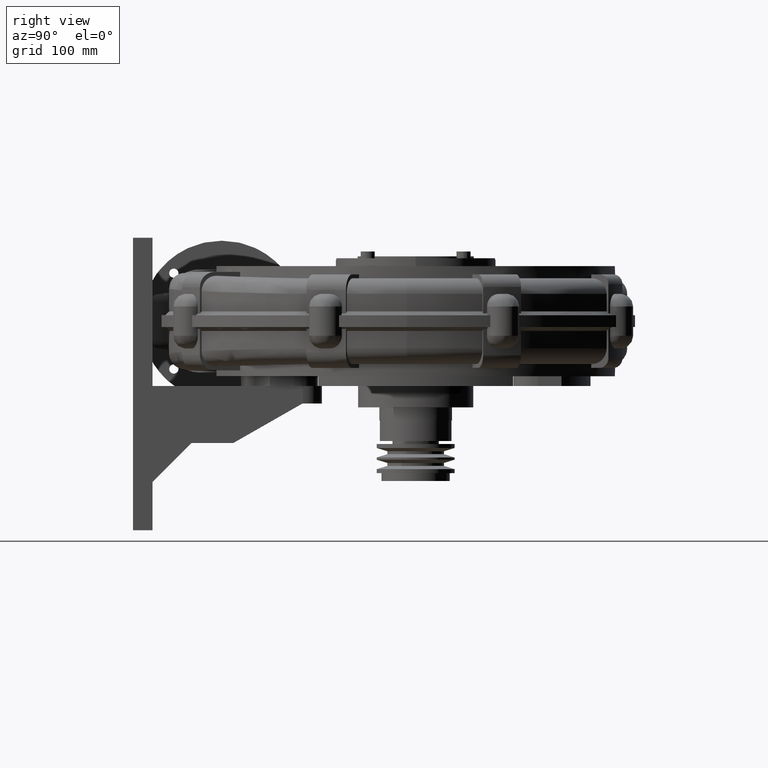
[diagram: clean part render]
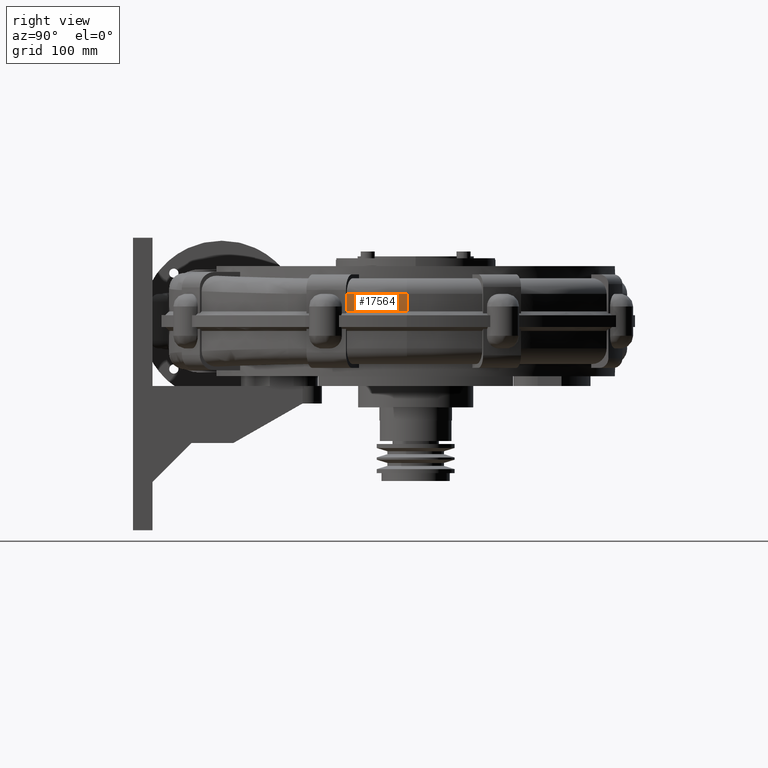
[diagram: same view with one face highlighted and labeled with its STEP entity id]
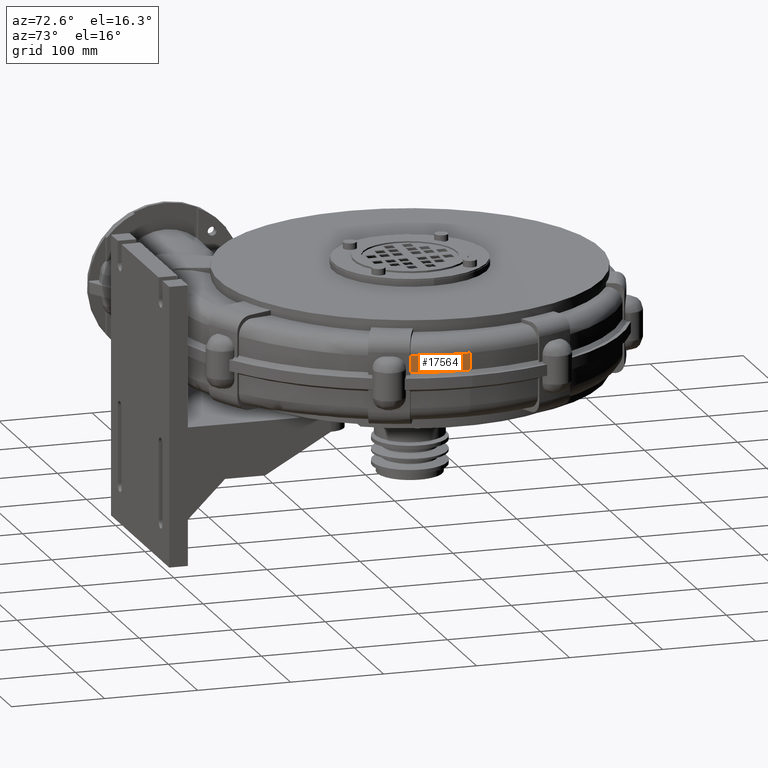
[diagram: same view with one face highlighted and labeled with its STEP entity id]
A machine part, right view. The second image highlights one B-rep face of the part: STEP entity #17564.
A second angle (auxiliary view) of the same face is appended — the face is thin or edge-on in the first view.
In plain terms, the highlighted cylindrical surface (partial cylindrical patch) has radius 244 mm, axis along (0, 0, 1).
Its self-contained STEP definition (entity closure, byte-faithful):
#8395=CARTESIAN_POINT('',(235.0,-23.999999999999947,94.499999999999375));
#8396=VERTEX_POINT('',#8395);
#8404=CARTESIAN_POINT('',(227.05029304419867,-85.775878413406076,94.499999999999432));
#8405=VERTEX_POINT('',#8404);
#8406=CARTESIAN_POINT('',(235.0,-24.00000013254942,94.499999999999375));
#8407=CARTESIAN_POINT('',(234.9999999886208,-44.820657930558802,94.499999999999389));
#8408=CARTESIAN_POINT('',(232.31886277508366,-65.635510600647478,94.499999999999403));
#8409=CARTESIAN_POINT('',(227.05005650347709,-85.775816521136647,94.499999999999432));
#8410=B_SPLINE_CURVE_WITH_KNOTS('',3,(#8406,#8407,#8408,#8409),.UNSPECIFIED.,.F.,.U.,(4,4),(-38.946366714942506,-32.59892621381163),.UNSPECIFIED.);
#8411=EDGE_CURVE('',#8396,#8405,#8410,.T.);
#12443=CARTESIAN_POINT('',(227.0502930441987,-85.775878413406019,112.49999999999943));
#12444=VERTEX_POINT('',#12443);
#12445=CARTESIAN_POINT('',(227.0502930441987,-85.775878413406019,112.49999999999943));
#12446=DIRECTION('',(0.0,0.0,-1.0));
#12447=VECTOR('',#12446,18.0);
#12448=LINE('',#12445,#12447);
#12449=EDGE_CURVE('',#12444,#8405,#12448,.T.);
#14665=CARTESIAN_POINT('',(234.99999999999969,-23.999999999999932,112.4999999999994));
#14666=VERTEX_POINT('',#14665);
#14674=CARTESIAN_POINT('',(234.99999999999969,-23.999999999999936,112.49999999999939));
#14675=DIRECTION('',(0.0,0.0,-1.0));
#14676=VECTOR('',#14675,18.000000000000014);
#14677=LINE('',#14674,#14676);
#14678=EDGE_CURVE('',#14666,#8396,#14677,.T.);
#17547=CARTESIAN_POINT('',(-8.999999999999998,-23.999999999999957,84.499999999999588));
#17548=DIRECTION('',(8.099377E-016,5.144112E-016,1.0));
#17549=DIRECTION('',(0.866025403784439,-0.5,-4.442210E-016));
#17550=AXIS2_PLACEMENT_3D('',#17547,#17548,#17549);
#17551=CYLINDRICAL_SURFACE('',#17550,243.99999999999997);
#17552=ORIENTED_EDGE('',*,*,#12449,.T.);
#17553=ORIENTED_EDGE('',*,*,#8411,.F.);
#17554=ORIENTED_EDGE('',*,*,#14678,.F.);
#17555=CARTESIAN_POINT('',(-8.999999999999975,-23.999999999999947,112.49999999999959));
#17556=DIRECTION('',(6.270793E-016,-1.680254E-016,1.0));
#17557=DIRECTION('',(0.965925826289068,-0.258819045102521,-6.492003E-016));
#17558=AXIS2_PLACEMENT_3D('',#17555,#17556,#17557);
#17559=CIRCLE('',#17558,244.0);
#17560=EDGE_CURVE('',#12444,#14666,#17559,.T.);
#17561=ORIENTED_EDGE('',*,*,#17560,.F.);
#17562=EDGE_LOOP('',(#17552,#17553,#17554,#17561));
#17563=FACE_OUTER_BOUND('',#17562,.T.);
#17564=ADVANCED_FACE('',(#17563),#17551,.T.);